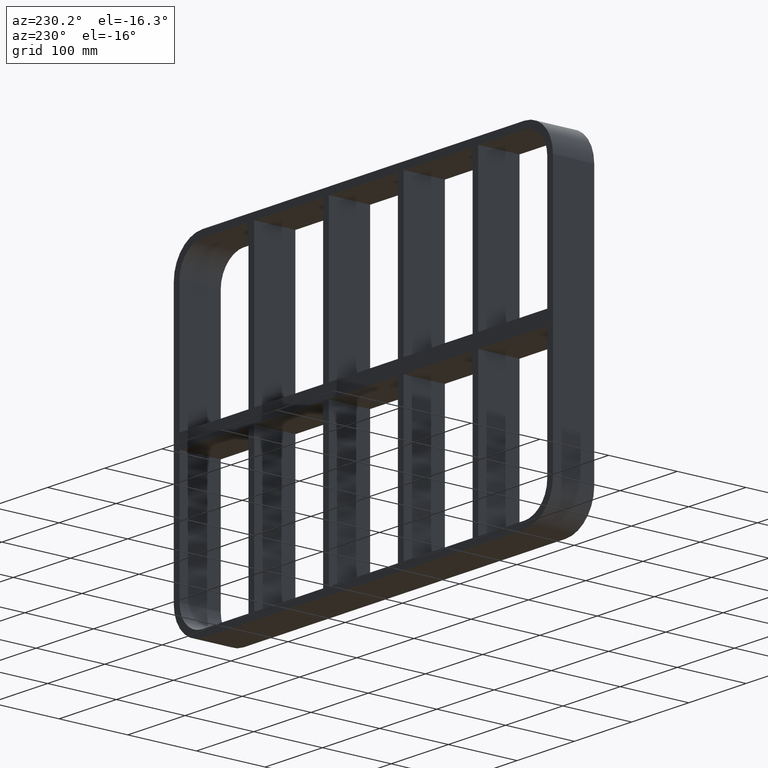
[diagram: clean part render]
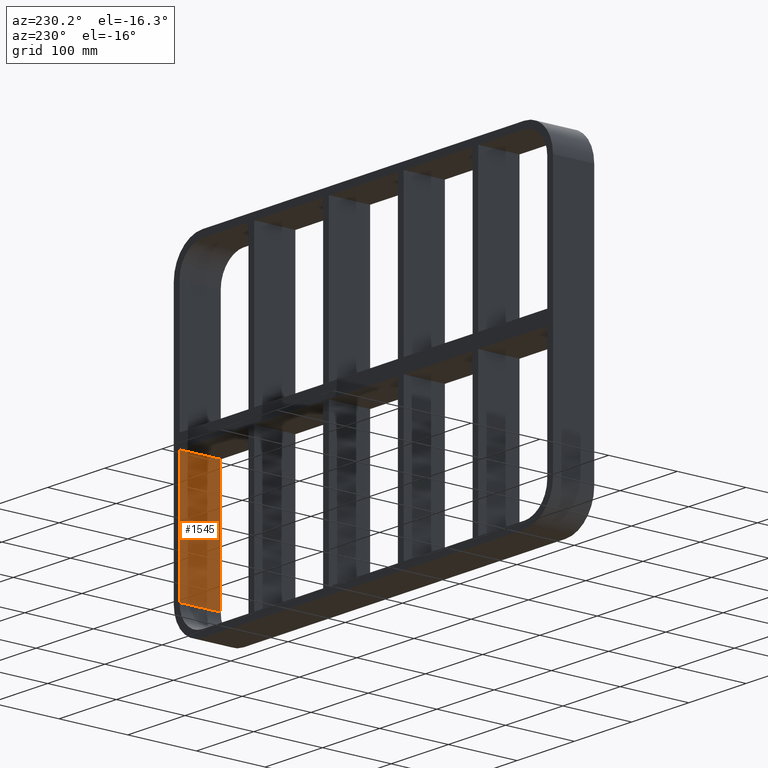
[diagram: same view with one face highlighted and labeled with its STEP entity id]
A machine part, auxiliary view. The second image highlights one B-rep face of the part: STEP entity #1545.
In plain terms, the highlighted planar face has unit normal (1, 0, 0).
Its self-contained STEP definition (entity closure, byte-faithful):
#861=CARTESIAN_POINT('',(321.25,-3.0,-10.000000000009237));
#862=VERTEX_POINT('',#861);
#869=CARTESIAN_POINT('',(321.24999999999989,-3.0,-188.00000000000006));
#870=VERTEX_POINT('',#869);
#871=CARTESIAN_POINT('',(321.24999999999989,-3.0,-10.000000000009237));
#872=DIRECTION('',(0.0,0.0,-1.0));
#873=VECTOR('',#872,177.99999999999076);
#874=LINE('',#871,#873);
#875=EDGE_CURVE('',#862,#870,#874,.T.);
#980=CARTESIAN_POINT('',(321.25,57.0,-10.000000000009237));
#981=VERTEX_POINT('',#980);
#988=CARTESIAN_POINT('',(321.24999999999989,-3.0,-10.000000000009237));
#989=DIRECTION('',(0.0,1.0,0.0));
#990=VECTOR('',#989,60.000000000000007);
#991=LINE('',#988,#990);
#992=EDGE_CURVE('',#862,#981,#991,.T.);
#1115=CARTESIAN_POINT('',(321.24999999999989,57.0,-188.00000000000006));
#1116=VERTEX_POINT('',#1115);
#1124=CARTESIAN_POINT('',(321.24999999999989,57.0,-188.0));
#1125=DIRECTION('',(0.0,0.0,1.0));
#1126=VECTOR('',#1125,177.99999999999076);
#1127=LINE('',#1124,#1126);
#1128=EDGE_CURVE('',#1116,#981,#1127,.T.);
#1529=CARTESIAN_POINT('',(321.24999999999989,0.0,228.0));
#1530=DIRECTION('',(1.0,0.0,0.0));
#1531=DIRECTION('',(0.0,0.0,-1.0));
#1532=AXIS2_PLACEMENT_3D('',#1529,#1530,#1531);
#1533=PLANE('',#1532);
#1534=ORIENTED_EDGE('',*,*,#992,.T.);
#1535=ORIENTED_EDGE('',*,*,#1128,.F.);
#1536=CARTESIAN_POINT('',(321.24999999999989,-3.0,-188.0));
#1537=DIRECTION('',(0.0,1.0,0.0));
#1538=VECTOR('',#1537,60.0);
#1539=LINE('',#1536,#1538);
#1540=EDGE_CURVE('',#870,#1116,#1539,.T.);
#1541=ORIENTED_EDGE('',*,*,#1540,.F.);
#1542=ORIENTED_EDGE('',*,*,#875,.F.);
#1543=EDGE_LOOP('',(#1534,#1535,#1541,#1542));
#1544=FACE_OUTER_BOUND('',#1543,.T.);
#1545=ADVANCED_FACE('',(#1544),#1533,.F.);